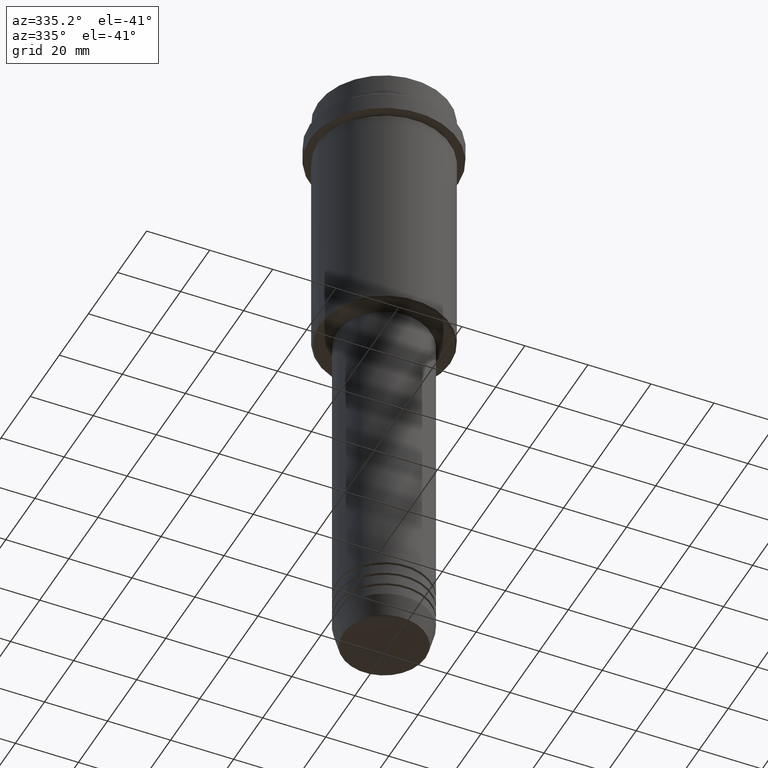
[diagram: clean part render]
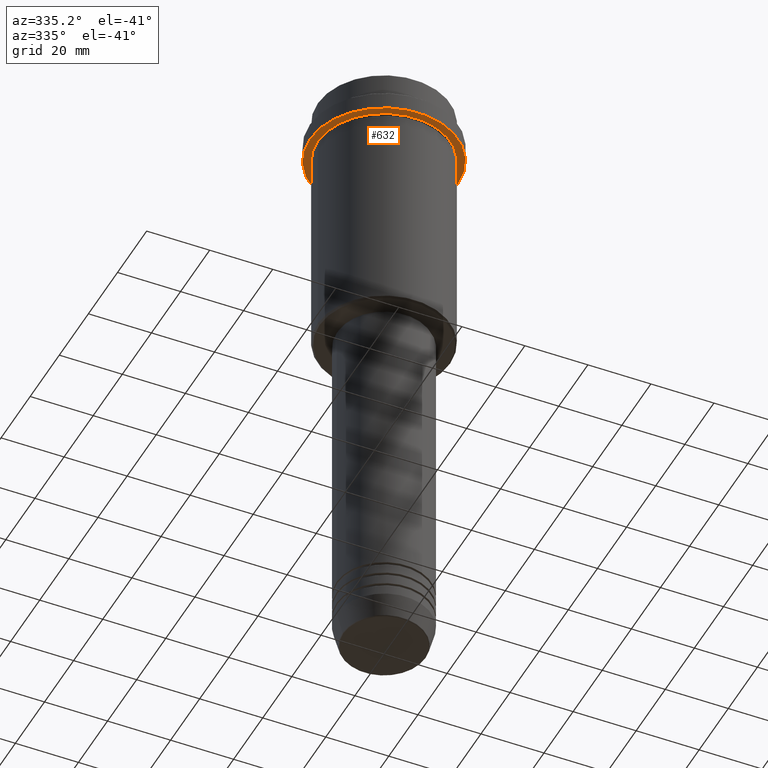
[diagram: same view with one face highlighted and labeled with its STEP entity id]
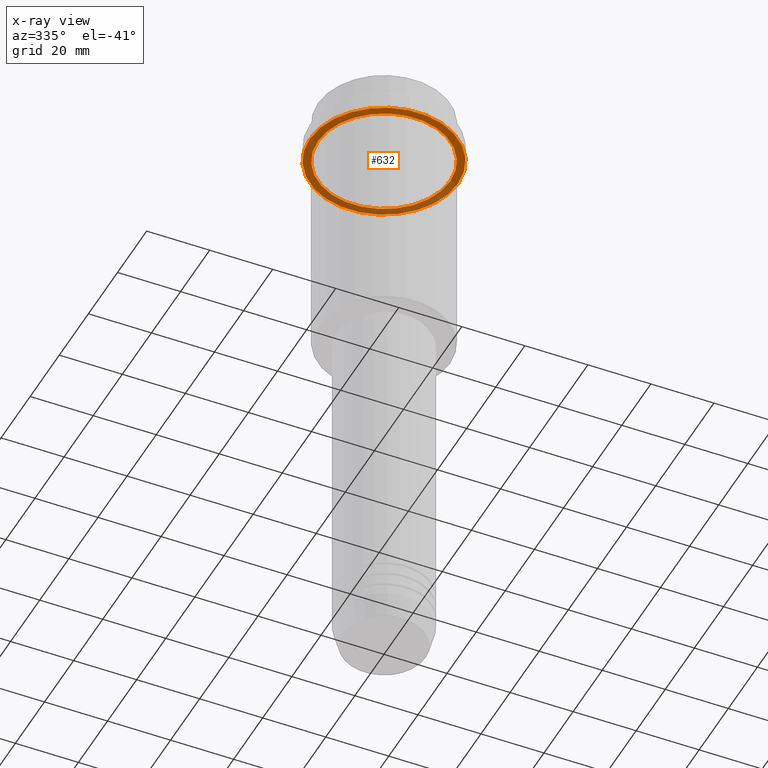
[diagram: x-ray of the same camera — body ghosted, the highlighted face saturated]
A machine part, auxiliary view. The second image highlights one B-rep face of the part: STEP entity #632.
The next image is the same camera in x-ray: the body ghosted, the highlighted face saturated — about 36% of this face is hidden behind the body in this view.
In plain terms, the highlighted planar face has unit normal (0, 0, -1).
Its self-contained STEP definition (entity closure, byte-faithful):
#32 = ORIENTED_EDGE ( 'NONE', *, *, #831, .F. ) ;
#73 = CARTESIAN_POINT ( 'NONE',  ( 0.000000000000000000, 0.000000000000000000, -15.00000000000000178 ) ) ;
#74 = VERTEX_POINT ( 'NONE', #674 ) ;
#80 = CARTESIAN_POINT ( 'NONE',  ( 0.000000000000000000, 0.000000000000000000, -15.00000000000000000 ) ) ;
#87 = CARTESIAN_POINT ( 'NONE',  ( 0.000000000000000000, 0.000000000000000000, -15.00000000000000178 ) ) ;
#89 = DIRECTION ( 'NONE',  ( -0.000000000000000000, -0.000000000000000000, 1.000000000000000000 ) ) ;
#138 = CARTESIAN_POINT ( 'NONE',  ( 0.000000000000000000, 0.000000000000000000, -15.00000000000000000 ) ) ;
#148 = EDGE_CURVE ( 'NONE', #1086, #74, #1116, .T. ) ;
#153 = ORIENTED_EDGE ( 'NONE', *, *, #148, .F. ) ;
#179 = VERTEX_POINT ( 'NONE', #424 ) ;
#231 = AXIS2_PLACEMENT_3D ( 'NONE', #87, #745, #1179 ) ;
#248 = EDGE_LOOP ( 'NONE', ( #32, #153 ) ) ;
#301 = CIRCLE ( 'NONE', #231, 20.99999999999999289 ) ;
#332 = EDGE_CURVE ( 'NONE', #179, #917, #1118, .T. ) ;
#367 = DIRECTION ( 'NONE',  ( -0.000000000000000000, -0.000000000000000000, 1.000000000000000000 ) ) ;
#395 = DIRECTION ( 'NONE',  ( -1.000000000000000000, 0.000000000000000000, 0.000000000000000000 ) ) ;
#396 = DIRECTION ( 'NONE',  ( 1.000000000000000000, 0.000000000000000000, 0.000000000000000000 ) ) ;
#424 = CARTESIAN_POINT ( 'NONE',  ( 20.99999999999999289, 2.571758278209440872E-15, -15.00000000000000178 ) ) ;
#482 = FACE_BOUND ( 'NONE', #855, .T. ) ;
#491 = FACE_OUTER_BOUND ( 'NONE', #248, .T. ) ;
#518 = ORIENTED_EDGE ( 'NONE', *, *, #1408, .T. ) ;
#599 = DIRECTION ( 'NONE',  ( 1.000000000000000000, 0.000000000000000000, 0.000000000000000000 ) ) ;
#632 = ADVANCED_FACE ( 'NONE', ( #482, #491 ), #793, .T. ) ;
#674 = CARTESIAN_POINT ( 'NONE',  ( 23.50000000000000355, 0.000000000000000000, -15.00000000000000000 ) ) ;
#686 = DIRECTION ( 'NONE',  ( 0.000000000000000000, 0.000000000000000000, -1.000000000000000000 ) ) ;
#709 = AXIS2_PLACEMENT_3D ( 'NONE', #138, #367, #396 ) ;
#745 = DIRECTION ( 'NONE',  ( -0.000000000000000000, -0.000000000000000000, 1.000000000000000000 ) ) ;
#793 = PLANE ( 'NONE',  #1258 ) ;
#831 = EDGE_CURVE ( 'NONE', #74, #1086, #894, .T. ) ;
#855 = EDGE_LOOP ( 'NONE', ( #518, #1028 ) ) ;
#894 = CIRCLE ( 'NONE', #1189, 23.50000000000000355 ) ;
#912 = CARTESIAN_POINT ( 'NONE',  ( -23.50000000000000711, 2.877919977996281109E-15, -15.00000000000000000 ) ) ;
#913 = CARTESIAN_POINT ( 'NONE',  ( 0.000000000000000000, 23.50000000000000355, -15.00000000000000178 ) ) ;
#917 = VERTEX_POINT ( 'NONE', #970 ) ;
#970 = CARTESIAN_POINT ( 'NONE',  ( -20.99999999999999289, 0.000000000000000000, -15.00000000000000178 ) ) ;
#1028 = ORIENTED_EDGE ( 'NONE', *, *, #332, .T. ) ;
#1040 = DIRECTION ( 'NONE',  ( -0.000000000000000000, -0.000000000000000000, 1.000000000000000000 ) ) ;
#1086 = VERTEX_POINT ( 'NONE', #912 ) ;
#1116 = CIRCLE ( 'NONE', #709, 23.50000000000000355 ) ;
#1118 = CIRCLE ( 'NONE', #1351, 20.99999999999999289 ) ;
#1179 = DIRECTION ( 'NONE',  ( -1.000000000000000000, 0.000000000000000000, 0.000000000000000000 ) ) ;
#1189 = AXIS2_PLACEMENT_3D ( 'NONE', #80, #89, #599 ) ;
#1246 = DIRECTION ( 'NONE',  ( -1.000000000000000000, 0.000000000000000000, -0.000000000000000000 ) ) ;
#1258 = AXIS2_PLACEMENT_3D ( 'NONE', #913, #686, #1246 ) ;
#1351 = AXIS2_PLACEMENT_3D ( 'NONE', #73, #1040, #395 ) ;
#1408 = EDGE_CURVE ( 'NONE', #917, #179, #301, .T. ) ;